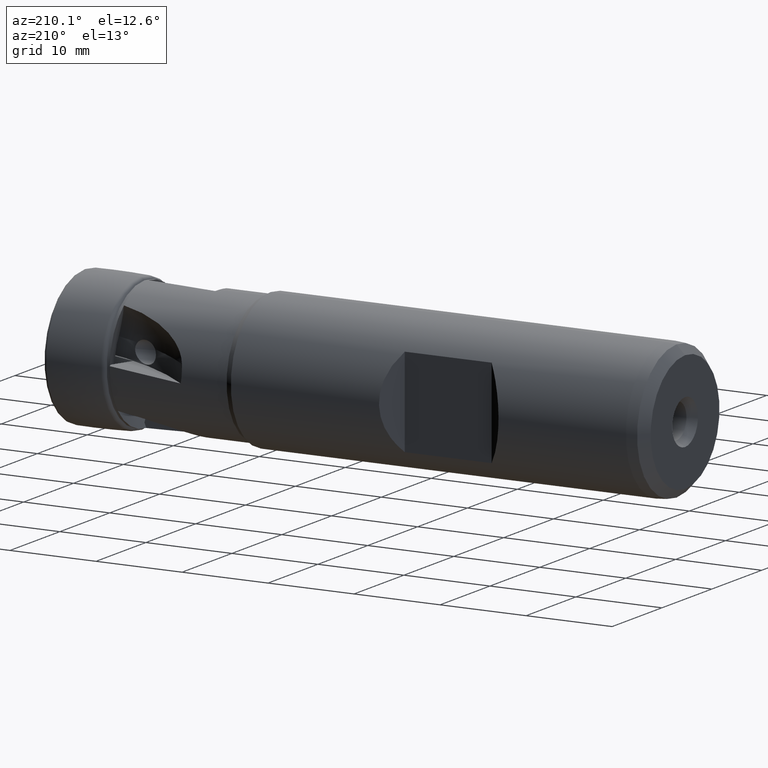
[diagram: clean part render]
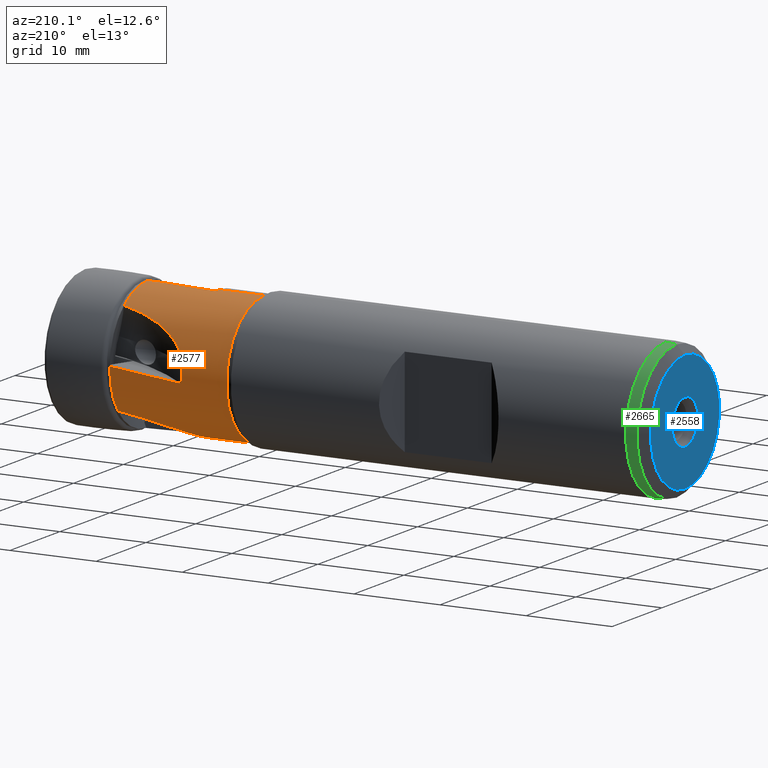
[diagram: same view with three faces highlighted in distinct colors, each labeled with its STEP entity id]
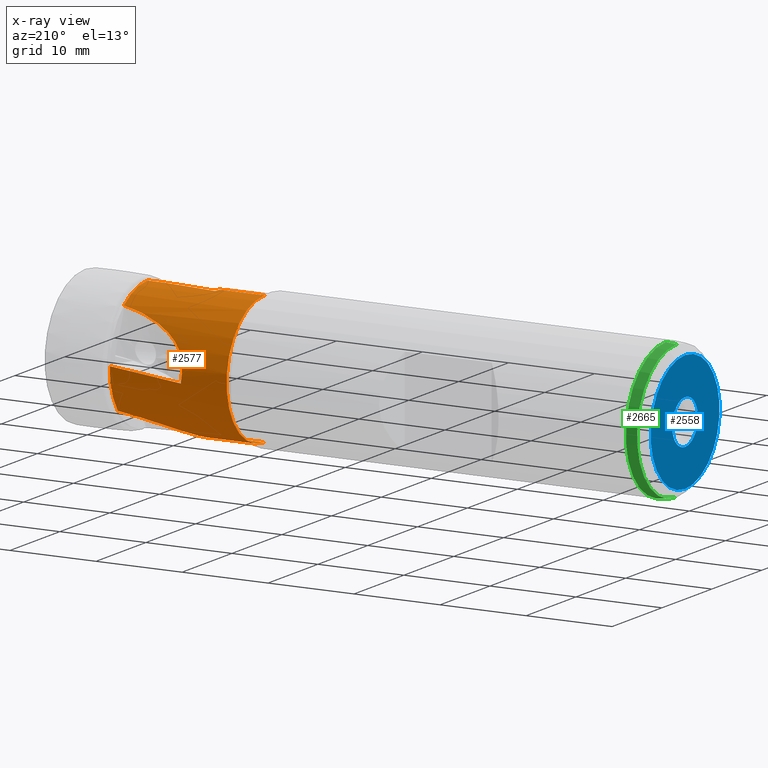
[diagram: x-ray of the same camera — body ghosted, the three highlighted faces saturated]
A machine part, auxiliary view with three faces highlighted in distinct colors.
The next image is the same camera in x-ray (body ghosted, the three faces saturated) — at least one of them is partly hidden behind the body in this view.
Their STEP definitions:

[orange] entity #2577 — the highlighted cylindrical surface (partial cylindrical patch) has radius 7.5775 mm, axis along (1, -0, -0).
#25 = ORIENTED_EDGE ( 'NONE', *, *, #2608, .F. ) ;
#27 = ORIENTED_EDGE ( 'NONE', *, *, #226, .T. ) ;
#222 = EDGE_CURVE ( 'NONE', #1445, #1448, #1717, .T. ) ;
#223 = EDGE_CURVE ( 'NONE', #1448, #1449, #2278, .T. ) ;
#224 = EDGE_CURVE ( 'NONE', #3323, #1449, #1555, .T. ) ;
#225 = EDGE_CURVE ( 'NONE', #3327, #3323, #425, .T. ) ;
#226 = EDGE_CURVE ( 'NONE', #3327, #3163, #2291, .T. ) ;
#227 = EDGE_CURVE ( 'NONE', #1447, #3162, #1558, .T. ) ;
#228 = EDGE_CURVE ( 'NONE', #1451, #1447, #1561, .T. ) ;
#229 = EDGE_CURVE ( 'NONE', #3161, #1451, #429, .T. ) ;
#230 = EDGE_CURVE ( 'NONE', #1446, #3160, #1564, .T. ) ;
#231 = EDGE_CURVE ( 'NONE', #1453, #1446, #1566, .T. ) ;
#232 = EDGE_CURVE ( 'NONE', #1445, #1453, #499, .T. ) ;
#425 =( BOUNDED_CURVE ( )  B_SPLINE_CURVE ( 3, ( #2283, #2288, #2289, #2290 ),
 .UNSPECIFIED., .F., .T. ) 
 B_SPLINE_CURVE_WITH_KNOTS ( ( 4, 4 ),
 ( 1.570796326794889700, 1.656319069123720200 ),
 .UNSPECIFIED. ) 
 CURVE ( )  GEOMETRIC_REPRESENTATION_ITEM ( )  RATIONAL_B_SPLINE_CURVE ( ( 1.000000000000000000, 0.9993905812491563600, 0.9993905812491563600, 1.000000000000000000 ) ) 
 REPRESENTATION_ITEM ( '' )  );
#429 =( BOUNDED_CURVE ( )  B_SPLINE_CURVE ( 3, ( #2309, #482, #483, #484 ),
 .UNSPECIFIED., .F., .T. ) 
 B_SPLINE_CURVE_WITH_KNOTS ( ( 4, 4 ),
 ( 1.541824511685422300, 1.656319069123720200 ),
 .UNSPECIFIED. ) 
 CURVE ( )  GEOMETRIC_REPRESENTATION_ITEM ( )  RATIONAL_B_SPLINE_CURVE ( ( 1.000000000000000000, 0.9989078813375386100, 0.9989078813375386100, 1.000000000000000000 ) ) 
 REPRESENTATION_ITEM ( '' )  );
#475 = CARTESIAN_POINT ( 'NONE',  ( -15.30418429665281900, 1.570415794317301600, -7.416224909019984300 ) ) ;
#476 = CARTESIAN_POINT ( 'NONE',  ( -15.36188781124496000, 7.584875049033673400, 0.01572916052504460100 ) ) ;
#477 = CARTESIAN_POINT ( 'NONE',  ( -15.39206875165627900, 7.553936982167300600, 0.6845531282446570800 ) ) ;
#478 = CARTESIAN_POINT ( 'NONE',  ( -15.37808465312703300, 7.515614681172055900, 1.023416306226905700 ) ) ;
#479 = CARTESIAN_POINT ( 'NONE',  ( -15.33333440140709500, 7.455429351433561900, 1.354651038379714800 ) ) ;
#480 = CARTESIAN_POINT ( 'NONE',  ( -15.37428799581421400, 0.2247603193267397300, -7.577499999999998800 ) ) ;
#481 = CARTESIAN_POINT ( 'NONE',  ( -15.24740651854873300, 1.776522735733909700, -7.369167136213931700 ) ) ;
#482 = CARTESIAN_POINT ( 'NONE',  ( -9.751847380404086600, 7.582701961205290600, -0.06972759575956960500 ) ) ;
#483 = CARTESIAN_POINT ( 'NONE',  ( -12.50374962647828700, 7.574521482563031100, -0.3589641768590586800 ) ) ;
#484 = CARTESIAN_POINT ( 'NONE',  ( -15.24669052682192600, 7.549805440468984100, -0.6472588825685883200 ) ) ;
#485 = CARTESIAN_POINT ( 'NONE',  ( -15.33333440140703600, 1.354651038379799200, -7.455429351433506800 ) ) ;
#486 = CARTESIAN_POINT ( 'NONE',  ( -15.08873138883053300, 2.172948619592026900, -7.262158880708139600 ) ) ;
#487 = CARTESIAN_POINT ( 'NONE',  ( -14.98759963922857700, 2.360366152332111300, -7.202878269635737000 ) ) ;
#488 = CARTESIAN_POINT ( 'NONE',  ( -14.64241031893376300, 2.883792354647830300, -7.017076162215854400 ) ) ;
#489 = CARTESIAN_POINT ( 'NONE',  ( -14.35087963573837700, 3.190938933976205800, -6.879430120447578300 ) ) ;
#490 = CARTESIAN_POINT ( 'NONE',  ( -13.72105148651536400, 3.725241539114988200, -6.605393670156138000 ) ) ;
#491 = CARTESIAN_POINT ( 'NONE',  ( -13.37940297012834500, 3.956559708159027400, -6.467289669227906000 ) ) ;
#492 = CARTESIAN_POINT ( 'NONE',  ( -12.65864975864528800, 4.371594283817244400, -6.194300913551572300 ) ) ;
#493 = CARTESIAN_POINT ( 'NONE',  ( -12.28415587280565500, 4.552101152869329100, -6.061254586552709400 ) ) ;
#494 = CARTESIAN_POINT ( 'NONE',  ( -11.13865844798482900, 5.033137014625170400, -5.679237740916661900 ) ) ;
#495 = CARTESIAN_POINT ( 'NONE',  ( -10.34120703456993700, 5.276962829780965900, -5.445501580167180200 ) ) ;
#496 = CARTESIAN_POINT ( 'NONE',  ( -8.696155689995743300, 5.671317078643002500, -5.033486541154691600 ) ) ;
#497 = CARTESIAN_POINT ( 'NONE',  ( -7.853674738177669900, 5.819135511319749400, -4.856785448051418500 ) ) ;
#498 = CARTESIAN_POINT ( 'NONE',  ( -6.999999999999998200, 5.930818102993590900, -4.716344228234778900 ) ) ;
#499 = LINE ( 'NONE', #501, #1753 ) ;
#500 = CARTESIAN_POINT ( 'NONE',  ( -15.35066473433330700, 2.249131895844708300E-016, -7.577499999999998800 ) ) ;
#501 = CARTESIAN_POINT ( 'NONE',  ( 0.0000000000000000000, 0.0000000000000000000, -7.577499999999998800 ) ) ;
#502 = CARTESIAN_POINT ( 'NONE',  ( -15.38511802449076200, 0.4503980382161235600, -7.567522191860281700 ) ) ;
#503 = CARTESIAN_POINT ( 'NONE',  ( -15.37984515053954800, 0.9035261771322629100, -7.526877902846805100 ) ) ;
#504 = CARTESIAN_POINT ( 'NONE',  ( -15.36353475583754300, 1.131112489964531700, -7.496046291445227700 ) ) ;
#505 = CARTESIAN_POINT ( 'NONE',  ( -15.33333440140703600, 1.354651038379799200, -7.455429351433506800 ) ) ;
#507 = DIRECTION ( 'NONE',  ( 1.000000000000000000, -0.0000000000000000000, -0.0000000000000000000 ) ) ;
#638 = CARTESIAN_POINT ( 'NONE',  ( -20.59500345304526500, 0.0000000000000000000, 7.577499999999997900 ) ) ;
#676 = CARTESIAN_POINT ( 'NONE',  ( -20.59500345304526500, 9.538467756858941400E-016, -7.577499999999997900 ) ) ;
#677 = CARTESIAN_POINT ( 'NONE',  ( -15.33333440140703600, 1.354651038379799200, -7.455429351433506800 ) ) ;
#678 = CARTESIAN_POINT ( 'NONE',  ( -15.33333440140709500, 7.455429351433561900, 1.354651038379714800 ) ) ;
#679 = CARTESIAN_POINT ( 'NONE',  ( -15.35066473433331200, 9.296650137347176800E-016, 7.577499999999998800 ) ) ;
#681 = CARTESIAN_POINT ( 'NONE',  ( -15.24669052682192600, 7.549805440468984100, -0.6472588825685883200 ) ) ;
#683 = CARTESIAN_POINT ( 'NONE',  ( -15.35066473433330700, 2.249131895844708300E-016, -7.577499999999998800 ) ) ;
#1055 = CARTESIAN_POINT ( 'NONE',  ( -7.000000000000000900, 0.0000000000000000000, 0.0000000000000000000 ) ) ;
#1056 = DIRECTION ( 'NONE',  ( 1.000000000000000000, -0.0000000000000000000, -0.0000000000000000000 ) ) ;
#1057 = DIRECTION ( 'NONE',  ( 0.0000000000000000000, 0.0000000000000000000, -1.000000000000000000 ) ) ;
#1065 = CARTESIAN_POINT ( 'NONE',  ( -7.000000000000000900, 0.0000000000000000000, 0.0000000000000000000 ) ) ;
#1066 = DIRECTION ( 'NONE',  ( 1.000000000000000000, -0.0000000000000000000, -0.0000000000000000000 ) ) ;
#1067 = DIRECTION ( 'NONE',  ( 0.0000000000000000000, 0.0000000000000000000, -1.000000000000000000 ) ) ;
#1445 = VERTEX_POINT ( 'NONE', #676 ) ;
#1446 = VERTEX_POINT ( 'NONE', #677 ) ;
#1447 = VERTEX_POINT ( 'NONE', #678 ) ;
#1448 = VERTEX_POINT ( 'NONE', #638 ) ;
#1449 = VERTEX_POINT ( 'NONE', #679 ) ;
#1451 = VERTEX_POINT ( 'NONE', #681 ) ;
#1453 = VERTEX_POINT ( 'NONE', #683 ) ;
#1454 = EDGE_LOOP ( 'NONE', ( #3222, #3750, #2771, #3212, #27, #25, #3223, #3224, #2772, #3708, #2652, #2649, #2750 ) ) ;
#1555 = B_SPLINE_CURVE_WITH_KNOTS ( 'NONE', 3,
 ( #2277, #2276, #2284, #2285 ),
 .UNSPECIFIED., .F., .F.,
 ( 4, 4 ),
 ( 9.038065643781130800E-017, 0.0006530204088868937800 ),
 .UNSPECIFIED. ) ;
#1558 = B_SPLINE_CURVE_WITH_KNOTS ( 'NONE', 3,
 ( #2295, #2287, #2286, #2296, #2297, #2298, #2299, #2300, #2301, #2302, #2303, #2304, #2305, #2306, #2307, #2308 ),
 .UNSPECIFIED., .F., .F.,
 ( 4, 2, 2, 2, 2, 2, 2, 4 ),
 ( 0.0008322576094183804400, 0.001487213761064103000, 0.002142169912709825400, 0.003452082216001270200, 0.004761994519292715000, 0.006071906822584159800, 0.008691731429167048500, 0.01131155603574994000 ),
 .UNSPECIFIED. ) ;
#1561 = B_SPLINE_CURVE_WITH_KNOTS ( 'NONE', 3,
 ( #2310, #2294, #476, #477, #478, #479 ),
 .UNSPECIFIED., .F., .F.,
 ( 4, 2, 4 ),
 ( 9.005641956179058400E-017, 0.001004227971322959700, 0.002008455942645829600 ),
 .UNSPECIFIED. ) ;
#1564 = B_SPLINE_CURVE_WITH_KNOTS ( 'NONE', 3,
 ( #485, #475, #481, #486, #487, #488, #489, #490, #491, #492, #493, #494, #495, #496, #497, #498 ),
 .UNSPECIFIED., .F., .F.,
 ( 4, 2, 2, 2, 2, 2, 2, 4 ),
 ( 0.0008322576094182436100, 0.001487213761063879700, 0.002142169912709515800, 0.003452082216000784900, 0.004761994519292055000, 0.006071906822583324600, 0.008691731429165870700, 0.01131155603574841500 ),
 .UNSPECIFIED. ) ;
#1566 = B_SPLINE_CURVE_WITH_KNOTS ( 'NONE', 3,
 ( #500, #480, #502, #503, #504, #505 ),
 .UNSPECIFIED., .F., .F.,
 ( 4, 2, 4 ),
 ( 0.0006530204088868194000, 0.001330738175766400700, 0.002008455942645982200 ),
 .UNSPECIFIED. ) ;
#1659 = VECTOR ( 'NONE', #2282, 1000.000000000000000 ) ;
#1681 = AXIS2_PLACEMENT_3D ( 'NONE', #1065, #1066, #1067 ) ;
#1717 = CIRCLE ( 'NONE', #1728, 7.577499999999997900 ) ;
#1728 = AXIS2_PLACEMENT_3D ( 'NONE', #2279, #2280, #2281 ) ;
#1734 = VECTOR ( 'NONE', #2293, 1000.000000000000000 ) ;
#1753 = VECTOR ( 'NONE', #507, 1000.000000000000000 ) ;
#1771 = AXIS2_PLACEMENT_3D ( 'NONE', #3581, #3578, #3583 ) ;
#1774 = CIRCLE ( 'NONE', #1904, 7.577500000000000600 ) ;
#1904 = AXIS2_PLACEMENT_3D ( 'NONE', #1055, #1056, #1057 ) ;
#1923 = CARTESIAN_POINT ( 'NONE',  ( -6.999999999999998200, 5.930818102993590900, -4.716344228234778900 ) ) ;
#1925 = CARTESIAN_POINT ( 'NONE',  ( -6.999999999999998200, 7.574320074235647100, 0.2195032187256336600 ) ) ;
#1926 = CARTESIAN_POINT ( 'NONE',  ( -6.999999999999998200, 4.716344228230767000, 5.930818102996782100 ) ) ;
#1928 = CARTESIAN_POINT ( 'NONE',  ( -7.000000000000000900, 9.279761120539069000E-016, 7.577500000000000600 ) ) ;
#1956 = CIRCLE ( 'NONE', #1681, 7.577500000000000600 ) ;
#2130 = CARTESIAN_POINT ( 'NONE',  ( -15.24669052682192600, 0.6472588825685620100, 7.549805440468984100 ) ) ;
#2134 = CARTESIAN_POINT ( 'NONE',  ( -9.088433621831013600, 9.279761120539067100E-016, 7.577499999999998800 ) ) ;
#2266 = CARTESIAN_POINT ( 'NONE',  ( 0.0000000000000000000, 9.279761120539067100E-016, 7.577499999999998800 ) ) ;
#2276 = CARTESIAN_POINT ( 'NONE',  ( -15.29325299752378200, 0.4323239280213441200, 7.568232214456366500 ) ) ;
#2277 = CARTESIAN_POINT ( 'NONE',  ( -15.24669052682192600, 0.6472588825685620100, 7.549805440468984100 ) ) ;
#2278 = LINE ( 'NONE', #2266, #1659 ) ;
#2279 = CARTESIAN_POINT ( 'NONE',  ( -20.59500345304526500, 0.0000000000000000000, 0.0000000000000000000 ) ) ;
#2280 = DIRECTION ( 'NONE',  ( 1.000000000000000000, -0.0000000000000000000, -0.0000000000000000000 ) ) ;
#2281 = DIRECTION ( 'NONE',  ( 0.0000000000000000000, 0.0000000000000000000, -1.000000000000000000 ) ) ;
#2282 = DIRECTION ( 'NONE',  ( 1.000000000000000000, -0.0000000000000000000, -0.0000000000000000000 ) ) ;
#2283 = CARTESIAN_POINT ( 'NONE',  ( -9.088433621831013600, 9.279761120539067100E-016, 7.577499999999998800 ) ) ;
#2284 = CARTESIAN_POINT ( 'NONE',  ( -15.32790235060162200, 0.2165696146702187900, 7.577499999999998800 ) ) ;
#2285 = CARTESIAN_POINT ( 'NONE',  ( -15.35066473433331200, 9.296650137347176800E-016, 7.577499999999998800 ) ) ;
#2286 = CARTESIAN_POINT ( 'NONE',  ( -15.24740651854872900, 7.369167136213945900, 1.776522735733856200 ) ) ;
#2287 = CARTESIAN_POINT ( 'NONE',  ( -15.30418429665282400, 7.416224909020003000, 1.570415794317223000 ) ) ;
#2288 = CARTESIAN_POINT ( 'NONE',  ( -11.14431701290929900, 0.2160820516146623200, 7.577499999999999700 ) ) ;
#2289 = CARTESIAN_POINT ( 'NONE',  ( -13.19832106315548600, 0.4319665765483621800, 7.568262850864464000 ) ) ;
#2290 = CARTESIAN_POINT ( 'NONE',  ( -15.24669052682192600, 0.6472588825685620100, 7.549805440468984100 ) ) ;
#2291 = LINE ( 'NONE', #2292, #1734 ) ;
#2292 = CARTESIAN_POINT ( 'NONE',  ( 0.0000000000000000000, 9.279761120539067100E-016, 7.577499999999998800 ) ) ;
#2293 = DIRECTION ( 'NONE',  ( 1.000000000000000000, -0.0000000000000000000, -0.0000000000000000000 ) ) ;
#2294 = CARTESIAN_POINT ( 'NONE',  ( -15.31829523451199600, 7.578142505601658000, -0.3167275692530698300 ) ) ;
#2295 = CARTESIAN_POINT ( 'NONE',  ( -15.33333440140709500, 7.455429351433561900, 1.354651038379714800 ) ) ;
#2296 = CARTESIAN_POINT ( 'NONE',  ( -15.08873138883050500, 7.262158880708137000, 2.172948619592026900 ) ) ;
#2297 = CARTESIAN_POINT ( 'NONE',  ( -14.98759963922852600, 7.202878269635732500, 2.360366152332127800 ) ) ;
#2298 = CARTESIAN_POINT ( 'NONE',  ( -14.64241031893364900, 7.017076162215826900, 2.883792354647903600 ) ) ;
#2299 = CARTESIAN_POINT ( 'NONE',  ( -14.35087963573820200, 6.879430120447534800, 3.190938933976304300 ) ) ;
#2300 = CARTESIAN_POINT ( 'NONE',  ( -13.72105148651508000, 6.605393670156062500, 3.725241539115122300 ) ) ;
#2301 = CARTESIAN_POINT ( 'NONE',  ( -13.37940297012800200, 6.467289669227813700, 3.956559708159176600 ) ) ;
#2302 = CARTESIAN_POINT ( 'NONE',  ( -12.65864975864481300, 6.194300913551449700, 4.371594283817416700 ) ) ;
#2303 = CARTESIAN_POINT ( 'NONE',  ( -12.28415587280514400, 6.061254586552576200, 4.552101152869505000 ) ) ;
#2304 = CARTESIAN_POINT ( 'NONE',  ( -11.13865844798414900, 5.679237740916502900, 5.033137014625354200 ) ) ;
#2305 = CARTESIAN_POINT ( 'NONE',  ( -10.34120703456913000, 5.445501580167007900, 5.276962829781145300 ) ) ;
#2306 = CARTESIAN_POINT ( 'NONE',  ( -8.696155689994665000, 5.033486541154507800, 5.671317078643162400 ) ) ;
#2307 = CARTESIAN_POINT ( 'NONE',  ( -7.853674738176486900, 4.856785448051244500, 5.819135511319895900 ) ) ;
#2308 = CARTESIAN_POINT ( 'NONE',  ( -6.999999999999998200, 4.716344228230767000, 5.930818102996782100 ) ) ;
#2309 = CARTESIAN_POINT ( 'NONE',  ( -6.999999999999998200, 7.574320074235647100, 0.2195032187256336600 ) ) ;
#2310 = CARTESIAN_POINT ( 'NONE',  ( -15.24669052682192600, 7.549805440468984100, -0.6472588825685883200 ) ) ;
#2577 = ADVANCED_FACE ( 'NONE', ( #3580 ), #3579, .T. ) ;
#2606 = EDGE_CURVE ( 'NONE', #3160, #3161, #1774, .T. ) ;
#2608 = EDGE_CURVE ( 'NONE', #3162, #3163, #1956, .T. ) ;
#2649 = ORIENTED_EDGE ( 'NONE', *, *, #231, .F. ) ;
#2652 = ORIENTED_EDGE ( 'NONE', *, *, #230, .F. ) ;
#2750 = ORIENTED_EDGE ( 'NONE', *, *, #232, .F. ) ;
#2771 = ORIENTED_EDGE ( 'NONE', *, *, #224, .F. ) ;
#2772 = ORIENTED_EDGE ( 'NONE', *, *, #229, .F. ) ;
#3160 = VERTEX_POINT ( 'NONE', #1923 ) ;
#3161 = VERTEX_POINT ( 'NONE', #1925 ) ;
#3162 = VERTEX_POINT ( 'NONE', #1926 ) ;
#3163 = VERTEX_POINT ( 'NONE', #1928 ) ;
#3212 = ORIENTED_EDGE ( 'NONE', *, *, #225, .F. ) ;
#3222 = ORIENTED_EDGE ( 'NONE', *, *, #222, .T. ) ;
#3223 = ORIENTED_EDGE ( 'NONE', *, *, #227, .F. ) ;
#3224 = ORIENTED_EDGE ( 'NONE', *, *, #228, .F. ) ;
#3323 = VERTEX_POINT ( 'NONE', #2130 ) ;
#3327 = VERTEX_POINT ( 'NONE', #2134 ) ;
#3578 = DIRECTION ( 'NONE',  ( 1.000000000000000000, -0.0000000000000000000, -0.0000000000000000000 ) ) ;
#3579 = CYLINDRICAL_SURFACE ( 'NONE', #1771, 7.577499999999998800 ) ;
#3580 = FACE_OUTER_BOUND ( 'NONE', #1454, .T. ) ;
#3581 = CARTESIAN_POINT ( 'NONE',  ( 0.0000000000000000000, 0.0000000000000000000, 0.0000000000000000000 ) ) ;
#3583 = DIRECTION ( 'NONE',  ( 0.0000000000000000000, 0.0000000000000000000, -1.000000000000000000 ) ) ;
#3708 = ORIENTED_EDGE ( 'NONE', *, *, #2606, .F. ) ;
#3750 = ORIENTED_EDGE ( 'NONE', *, *, #223, .T. ) ;

[blue] entity #2558 — the highlighted planar face has unit normal (-1, 0, 0).
#37 = EDGE_LOOP ( 'NONE', ( #1332, #1330 ) ) ;
#41 = EDGE_LOOP ( 'NONE', ( #1307, #1308 ) ) ;
#187 = EDGE_CURVE ( 'NONE', #3260, #3262, #717, .T. ) ;
#188 = EDGE_CURVE ( 'NONE', #3309, #3306, #732, .T. ) ;
#717 = CIRCLE ( 'NONE', #765, 2.577350269189620000 ) ;
#732 = CIRCLE ( 'NONE', #763, 6.899999999999992400 ) ;
#763 = AXIS2_PLACEMENT_3D ( 'NONE', #3455, #3456, #3457 ) ;
#765 = AXIS2_PLACEMENT_3D ( 'NONE', #3452, #3453, #3454 ) ;
#1100 = CARTESIAN_POINT ( 'NONE',  ( -69.50000000000000000, 0.0000000000000000000, 0.0000000000000000000 ) ) ;
#1101 = DIRECTION ( 'NONE',  ( 1.000000000000000000, -0.0000000000000000000, -0.0000000000000000000 ) ) ;
#1102 = DIRECTION ( 'NONE',  ( 0.0000000000000000000, 0.0000000000000000000, -1.000000000000000000 ) ) ;
#1115 = CARTESIAN_POINT ( 'NONE',  ( -69.50000000000000000, 0.0000000000000000000, 0.0000000000000000000 ) ) ;
#1116 = DIRECTION ( 'NONE',  ( 1.000000000000000000, -0.0000000000000000000, -0.0000000000000000000 ) ) ;
#1117 = DIRECTION ( 'NONE',  ( 0.0000000000000000000, 0.0000000000000000000, -1.000000000000000000 ) ) ;
#1307 = ORIENTED_EDGE ( 'NONE', *, *, #2625, .T. ) ;
#1308 = ORIENTED_EDGE ( 'NONE', *, *, #187, .T. ) ;
#1330 = ORIENTED_EDGE ( 'NONE', *, *, #188, .F. ) ;
#1332 = ORIENTED_EDGE ( 'NONE', *, *, #2620, .F. ) ;
#1721 = CIRCLE ( 'NONE', #1730, 6.899999999999992400 ) ;
#1730 = AXIS2_PLACEMENT_3D ( 'NONE', #1100, #1101, #1102 ) ;
#1741 = CIRCLE ( 'NONE', #1749, 2.577350269189620000 ) ;
#1749 = AXIS2_PLACEMENT_3D ( 'NONE', #1115, #1116, #1117 ) ;
#1877 = AXIS2_PLACEMENT_3D ( 'NONE', #2960, #2957, #2965 ) ;
#2080 = CARTESIAN_POINT ( 'NONE',  ( -69.50000000000000000, 0.0000000000000000000, 2.577350269189620000 ) ) ;
#2081 = CARTESIAN_POINT ( 'NONE',  ( -69.50000000000000000, 0.0000000000000000000, -6.899999999999992400 ) ) ;
#2094 = CARTESIAN_POINT ( 'NONE',  ( -69.50000000000000000, 3.156343757444637300E-016, -2.577350269189620000 ) ) ;
#2118 = CARTESIAN_POINT ( 'NONE',  ( -69.50000000000000000, 9.062386313690404500E-016, 6.899999999999992400 ) ) ;
#2558 = ADVANCED_FACE ( 'NONE', ( #2961, #2955 ), #2963, .T. ) ;
#2620 = EDGE_CURVE ( 'NONE', #3306, #3309, #1721, .T. ) ;
#2625 = EDGE_CURVE ( 'NONE', #3262, #3260, #1741, .T. ) ;
#2955 = FACE_OUTER_BOUND ( 'NONE', #37, .T. ) ;
#2957 = DIRECTION ( 'NONE',  ( -1.000000000000000000, 0.0000000000000000000, 0.0000000000000000000 ) ) ;
#2960 = CARTESIAN_POINT ( 'NONE',  ( -69.50000000000000000, 6.899999999999992400, 0.0000000000000000000 ) ) ;
#2961 = FACE_BOUND ( 'NONE', #41, .T. ) ;
#2963 = PLANE ( 'NONE',  #1877 ) ;
#2965 = DIRECTION ( 'NONE',  ( 0.0000000000000000000, 0.0000000000000000000, 1.000000000000000000 ) ) ;
#3260 = VERTEX_POINT ( 'NONE', #2094 ) ;
#3262 = VERTEX_POINT ( 'NONE', #2080 ) ;
#3306 = VERTEX_POINT ( 'NONE', #2081 ) ;
#3309 = VERTEX_POINT ( 'NONE', #2118 ) ;
#3452 = CARTESIAN_POINT ( 'NONE',  ( -69.50000000000000000, 0.0000000000000000000, 0.0000000000000000000 ) ) ;
#3453 = DIRECTION ( 'NONE',  ( 1.000000000000000000, -0.0000000000000000000, -0.0000000000000000000 ) ) ;
#3454 = DIRECTION ( 'NONE',  ( 0.0000000000000000000, 0.0000000000000000000, -1.000000000000000000 ) ) ;
#3455 = CARTESIAN_POINT ( 'NONE',  ( -69.50000000000000000, 0.0000000000000000000, 0.0000000000000000000 ) ) ;
#3456 = DIRECTION ( 'NONE',  ( 1.000000000000000000, -0.0000000000000000000, -0.0000000000000000000 ) ) ;
#3457 = DIRECTION ( 'NONE',  ( 0.0000000000000000000, 0.0000000000000000000, -1.000000000000000000 ) ) ;

[green] entity #2665 — the highlighted conical surface has half-angle 4.574 deg.
#432 = ORIENTED_EDGE ( 'NONE', *, *, #2617, .T. ) ;
#440 = ORIENTED_EDGE ( 'NONE', *, *, #2616, .T. ) ;
#1079 = CARTESIAN_POINT ( 'NONE',  ( -66.00000000000000000, 0.0000000000000000000, -8.099999999999992500 ) ) ;
#1083 = CARTESIAN_POINT ( 'NONE',  ( -66.00000000000000000, 9.919639073093551300E-016, 8.099999999999992500 ) ) ;
#1087 = LINE ( 'NONE', #1083, #1706 ) ;
#1088 = CARTESIAN_POINT ( 'NONE',  ( -68.50000000000000000, 0.0000000000000000000, 0.0000000000000000000 ) ) ;
#1089 = DIRECTION ( 'NONE',  ( 1.000000000000000000, -0.0000000000000000000, -0.0000000000000000000 ) ) ;
#1090 = DIRECTION ( 'NONE',  ( 0.0000000000000000000, 0.0000000000000000000, -1.000000000000000000 ) ) ;
#1091 = DIRECTION ( 'NONE',  ( 0.9968152785361249500, 9.765973121603558300E-018, 0.07974522228289011900 ) ) ;
#1093 = LINE ( 'NONE', #1079, #1715 ) ;
#1094 = CARTESIAN_POINT ( 'NONE',  ( -67.24999999999998600, 0.0000000000000000000, 0.0000000000000000000 ) ) ;
#1095 = DIRECTION ( 'NONE',  ( 1.000000000000000000, -0.0000000000000000000, -0.0000000000000000000 ) ) ;
#1096 = DIRECTION ( 'NONE',  ( 0.0000000000000000000, 0.0000000000000000000, -1.000000000000000000 ) ) ;
#1097 = DIRECTION ( 'NONE',  ( 0.9968152785361249500, 0.0000000000000000000, -0.07974522228289011900 ) ) ;
#1190 = DIRECTION ( 'NONE',  ( 0.0000000000000000000, 0.0000000000000000000, -1.000000000000000000 ) ) ;
#1191 = CARTESIAN_POINT ( 'NONE',  ( -66.00000000000000000, 0.0000000000000000000, 0.0000000000000000000 ) ) ;
#1192 = FACE_OUTER_BOUND ( 'NONE', #2834, .T. ) ;
#1193 = DIRECTION ( 'NONE',  ( 1.000000000000000000, -0.0000000000000000000, -0.0000000000000000000 ) ) ;
#1639 = CONICAL_SURFACE ( 'NONE', #1640, 8.099999999999992500, 0.07982998571223745600 ) ;
#1640 = AXIS2_PLACEMENT_3D ( 'NONE', #1191, #1193, #1190 ) ;
#1706 = VECTOR ( 'NONE', #1091, 1000.000000000000200 ) ;
#1712 = CIRCLE ( 'NONE', #1853, 7.899999999999992400 ) ;
#1715 = VECTOR ( 'NONE', #1097, 1000.000000000000200 ) ;
#1740 = CIRCLE ( 'NONE', #1884, 7.999999999999992900 ) ;
#1853 = AXIS2_PLACEMENT_3D ( 'NONE', #1088, #1089, #1090 ) ;
#1884 = AXIS2_PLACEMENT_3D ( 'NONE', #1094, #1095, #1096 ) ;
#2089 = CARTESIAN_POINT ( 'NONE',  ( -68.50000000000000000, 0.0000000000000000000, -7.899999999999992400 ) ) ;
#2112 = CARTESIAN_POINT ( 'NONE',  ( -67.24999999999998600, 9.797174393178817800E-016, 7.999999999999992900 ) ) ;
#2115 = CARTESIAN_POINT ( 'NONE',  ( -68.50000000000000000, 9.674709713264080300E-016, 7.899999999999992400 ) ) ;
#2117 = CARTESIAN_POINT ( 'NONE',  ( -67.24999999999998600, 0.0000000000000000000, -7.999999999999992900 ) ) ;
#2616 = EDGE_CURVE ( 'NONE', #3255, #3304, #1712, .T. ) ;
#2617 = EDGE_CURVE ( 'NONE', #3304, #3308, #1087, .T. ) ;
#2618 = EDGE_CURVE ( 'NONE', #3307, #3308, #1740, .T. ) ;
#2619 = EDGE_CURVE ( 'NONE', #3255, #3307, #1093, .T. ) ;
#2665 = ADVANCED_FACE ( 'NONE', ( #1192 ), #1639, .T. ) ;
#2757 = ORIENTED_EDGE ( 'NONE', *, *, #2618, .F. ) ;
#2788 = ORIENTED_EDGE ( 'NONE', *, *, #2619, .F. ) ;
#2834 = EDGE_LOOP ( 'NONE', ( #440, #432, #2757, #2788 ) ) ;
#3255 = VERTEX_POINT ( 'NONE', #2089 ) ;
#3304 = VERTEX_POINT ( 'NONE', #2115 ) ;
#3307 = VERTEX_POINT ( 'NONE', #2117 ) ;
#3308 = VERTEX_POINT ( 'NONE', #2112 ) ;